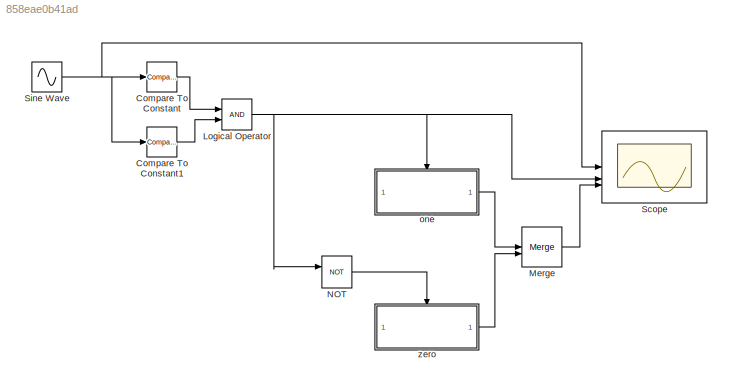
MODEL slx_858eae0b41ad
KIND model
CONFIG AbsTol = auto
CONFIG EnableMultiTasking = off
CONFIG FixedStep = 1e-3
CONFIG MaxStep = auto
CONFIG MinStep = auto
CONFIG RelTol = auto
CONFIG SampleTimeConstraint = Unconstrained
CONFIG SolverName = FixedStepAuto
CONFIG StartTime = 0.0
CONFIG StopTime = 10
BLOCK [Reference] Compare To Constant  REF=simulink/Logic and Bit
Operations/Compare
To Constant
  SourceBlock = simulink/Logic and Bit\nOperations/Compare\nTo Constant
  SourceType = Compare To Constant
BLOCK [Reference] Compare To Constant1  REF=simulink/Logic and Bit
Operations/Compare
To Constant
  SourceBlock = simulink/Logic and Bit\nOperations/Compare\nTo Constant
  SourceType = Compare To Constant
BLOCK [Logic] Logical Operator
  AllPortsSameDT = off
  OutDataTypeStr = boolean
BLOCK [Merge] Merge
BLOCK [Logic] NOT
  AllPortsSameDT = off
  IconShape = distinctive
  Operator = NOT
  OutDataTypeStr = boolean
BLOCK [Scope] Scope
  Floating = off
  NumInputPorts = 3
  ScopeSpecificationString = Simulink.scopes.TimeScopeBlockCfg('CurrentConfiguration', extmgr.ConfigurationSet(extmgr.Configuration('Core','General UI',true),extmgr.Configuration('Core','Source UI',true),extmgr.Configuration('Sources','WiredSimulink',true),extmgr.Configuration('Visuals','Time Domain',true,'SerializedDisplays',{struct('MinYLimReal','-238.031','MaxYLimReal','237.02313','YLabelReal','','MinYLimMag',' 0.00000','M...<+3046ch>
BLOCK [Sin] Sine Wave
  Amplitude = 220
  Frequency = 5
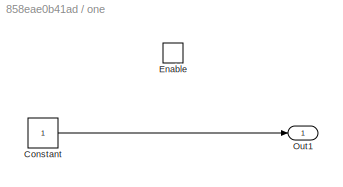
BLOCK [SubSystem] one
  RTWSystemCode = Reusable function
  TreatAsAtomicUnit = on
BLOCK [Constant] one/Constant
BLOCK [EnablePort] one/Enable
  StatesWhenEnabling = reset
BLOCK [Outport] one/Out1
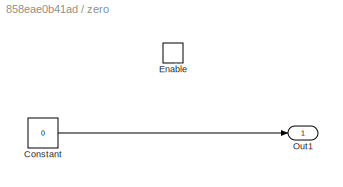
BLOCK [SubSystem] zero
  RTWSystemCode = Reusable function
  TreatAsAtomicUnit = on
BLOCK [Constant] zero/Constant
  Value = 0
BLOCK [EnablePort] zero/Enable
  StatesWhenEnabling = reset
BLOCK [Outport] zero/Out1
LINE Compare To Constant1:1 -> Logical Operator:2
LINE Compare To Constant:1 -> Logical Operator:1
NET Logical Operator:1 -> NOT:1, Scope:2, one:enable
LINE Merge:1 -> Scope:3
LINE NOT:1 -> zero:enable
NET Sine Wave:1 -> Compare To Constant1:1, Compare To Constant:1, Scope:1
LINE one/Constant:1 -> one/Out1:1
LINE one:1 -> Merge:1
LINE zero/Constant:1 -> zero/Out1:1
LINE zero:1 -> Merge:2
note: NET lines group one-source signal fan-out (src -> all destinations, sorted); 1:1 wires keep LINE
